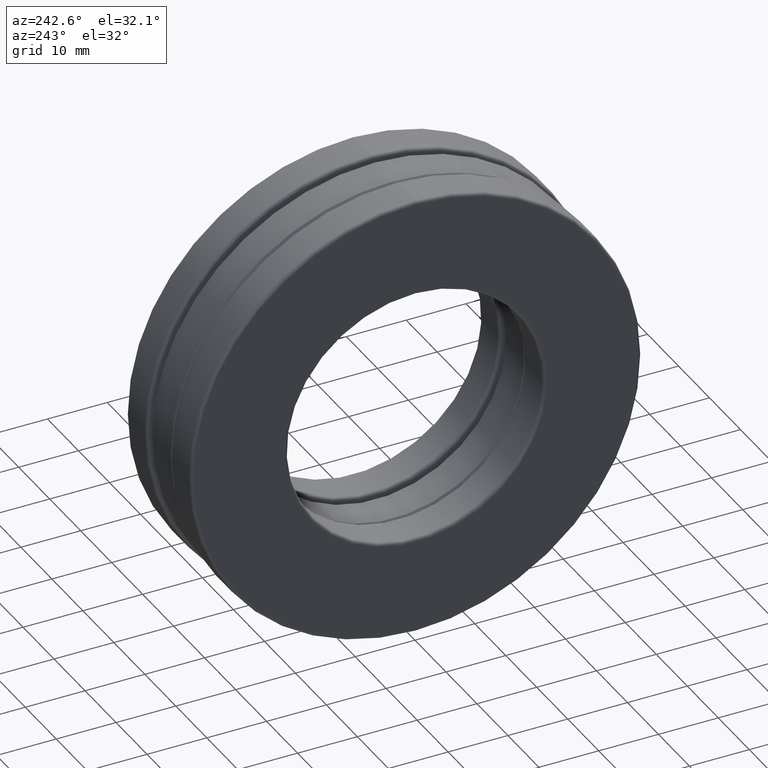
[diagram: clean part render]
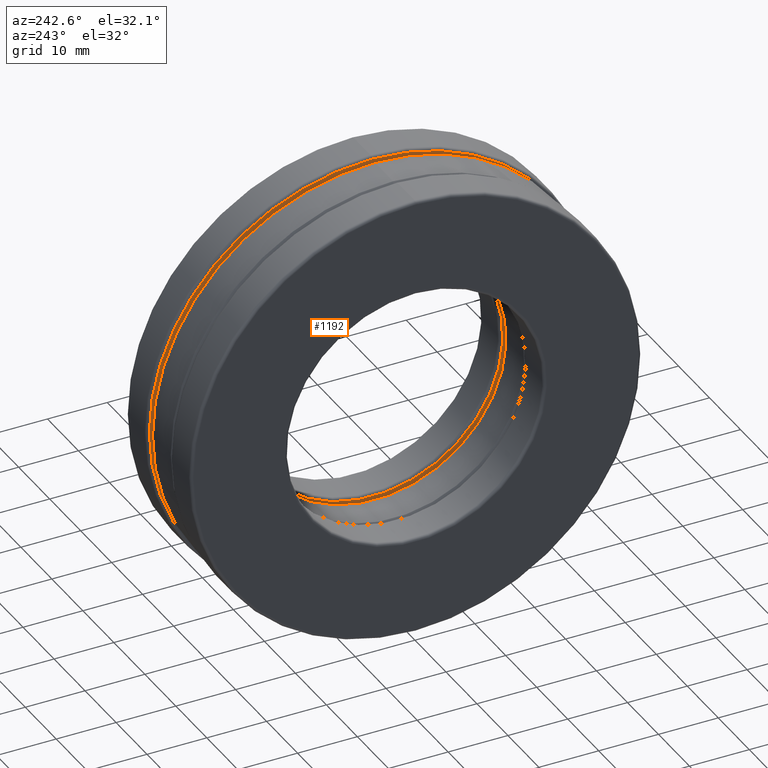
[diagram: same view with one face highlighted and labeled with its STEP entity id]
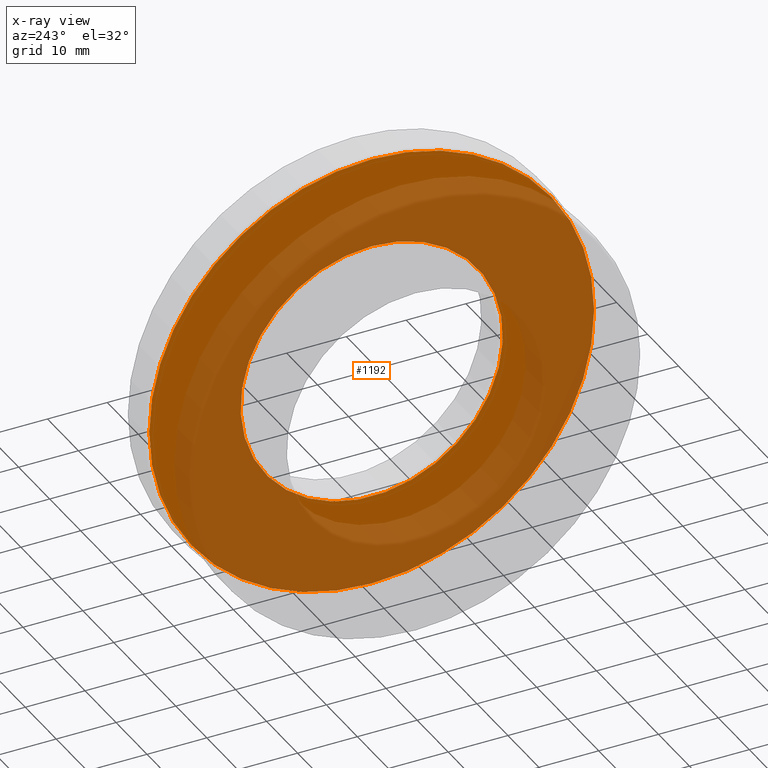
[diagram: x-ray of the same camera — body ghosted, the highlighted face saturated]
A machine part, auxiliary view. The second image highlights one B-rep face of the part: STEP entity #1192.
The next image is the same camera in x-ray: the body ghosted, the highlighted face saturated — about 71% of this face is hidden behind the body in this view.
In plain terms, the highlighted planar face has unit normal (1, 0, 0).
Its self-contained STEP definition (entity closure, byte-faithful):
#227 = EDGE_CURVE ( 'NONE', #1019, #1019, #939, .T. ) ;
#236 = PLANE ( 'NONE',  #921 ) ;
#243 = CIRCLE ( 'NONE', #755, 1.464375000000000400 ) ;
#277 = FACE_OUTER_BOUND ( 'NONE', #840, .T. ) ;
#292 = DIRECTION ( 'NONE',  ( 0.0000000000000000000, 0.0000000000000000000, 1.000000000000000000 ) ) ;
#396 = CARTESIAN_POINT ( 'NONE',  ( 0.1560000000000000000, 0.0000000000000000000, 1.464375000000000400 ) ) ;
#550 = DIRECTION ( 'NONE',  ( 0.0000000000000000000, 0.0000000000000000000, 1.000000000000000000 ) ) ;
#559 = ORIENTED_EDGE ( 'NONE', *, *, #1382, .T. ) ;
#590 = CARTESIAN_POINT ( 'NONE',  ( 0.1560000000000000000, -8.869267159451085200E-018, 0.0000000000000000000 ) ) ;
#623 = ORIENTED_EDGE ( 'NONE', *, *, #227, .F. ) ;
#640 = EDGE_LOOP ( 'NONE', ( #623 ) ) ;
#755 = AXIS2_PLACEMENT_3D ( 'NONE', #903, #897, #550 ) ;
#840 = EDGE_LOOP ( 'NONE', ( #559 ) ) ;
#897 = DIRECTION ( 'NONE',  ( -1.000000000000000000, -0.0000000000000000000, -0.0000000000000000000 ) ) ;
#903 = CARTESIAN_POINT ( 'NONE',  ( 0.1560000000000000000, 0.0000000000000000000, 0.0000000000000000000 ) ) ;
#921 = AXIS2_PLACEMENT_3D ( 'NONE', #590, #1470, #925 ) ;
#925 = DIRECTION ( 'NONE',  ( 0.0000000000000000000, 0.0000000000000000000, -1.000000000000000000 ) ) ;
#939 = CIRCLE ( 'NONE', #1289, 0.8637500000000000200 ) ;
#974 = CARTESIAN_POINT ( 'NONE',  ( 0.1559999999999999400, 0.0000000000000000000, 0.0000000000000000000 ) ) ;
#980 = DIRECTION ( 'NONE',  ( -1.000000000000000000, -0.0000000000000000000, -0.0000000000000000000 ) ) ;
#1019 = VERTEX_POINT ( 'NONE', #1066 ) ;
#1066 = CARTESIAN_POINT ( 'NONE',  ( 0.1559999999999999400, 0.0000000000000000000, 0.8637500000000000200 ) ) ;
#1192 = ADVANCED_FACE ( 'NONE', ( #1358, #277 ), #236, .F. ) ;
#1288 = VERTEX_POINT ( 'NONE', #396 ) ;
#1289 = AXIS2_PLACEMENT_3D ( 'NONE', #974, #980, #292 ) ;
#1358 = FACE_BOUND ( 'NONE', #640, .T. ) ;
#1382 = EDGE_CURVE ( 'NONE', #1288, #1288, #243, .T. ) ;
#1470 = DIRECTION ( 'NONE',  ( 1.000000000000000000, 0.0000000000000000000, 0.0000000000000000000 ) ) ;